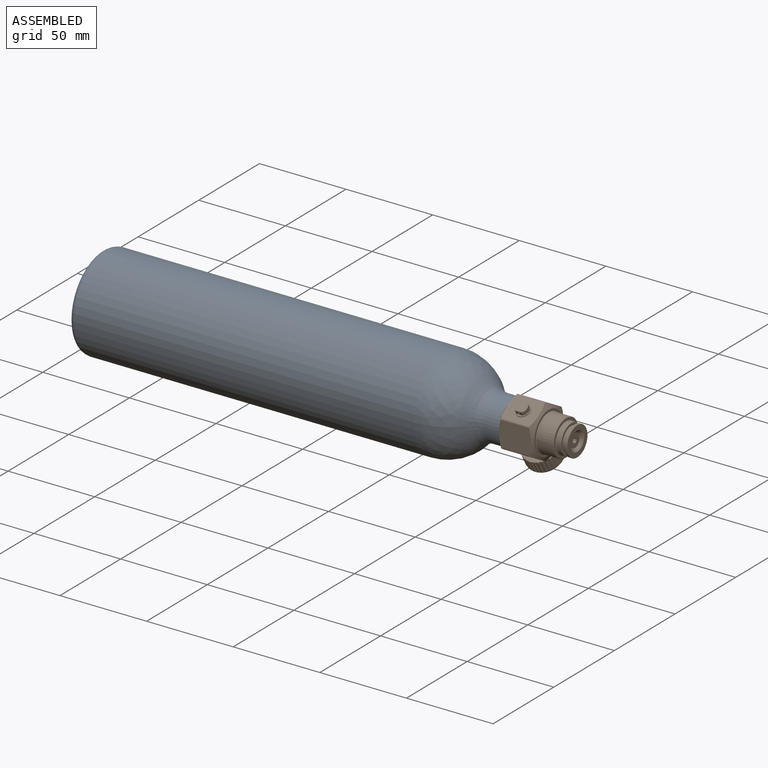
[diagram: assembled view]
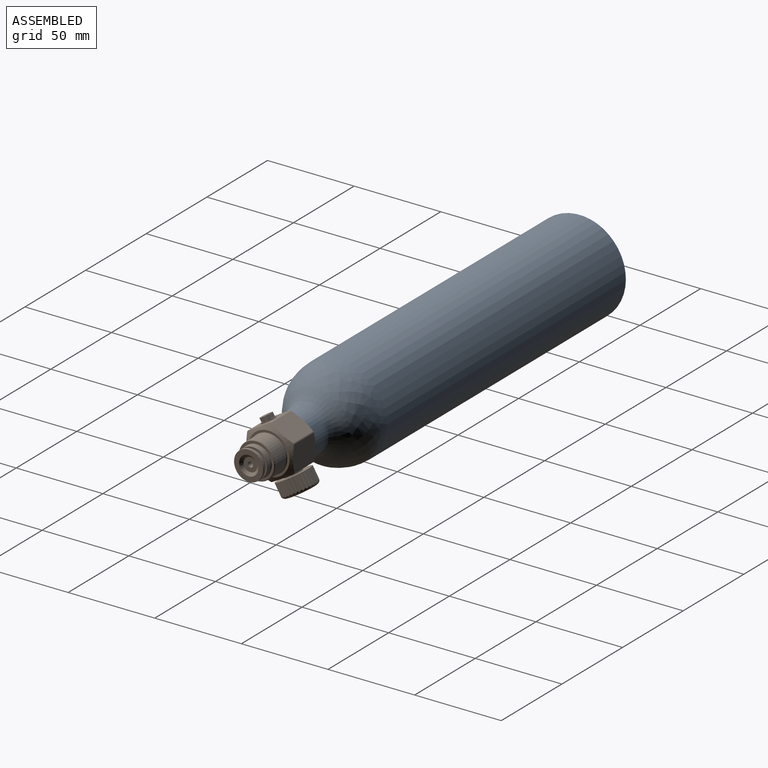
[diagram: assembled view, second angle]
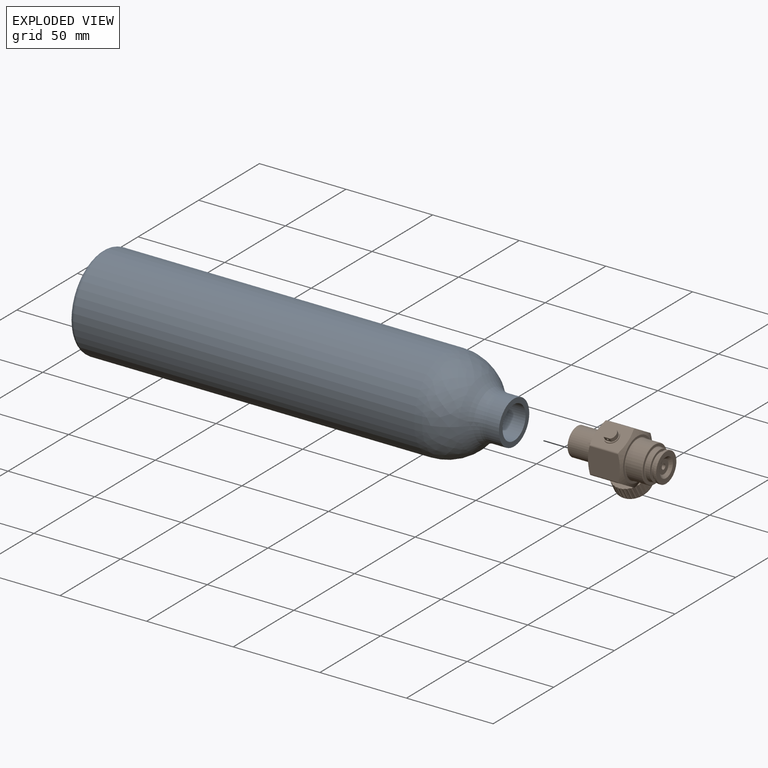
[diagram: exploded view]
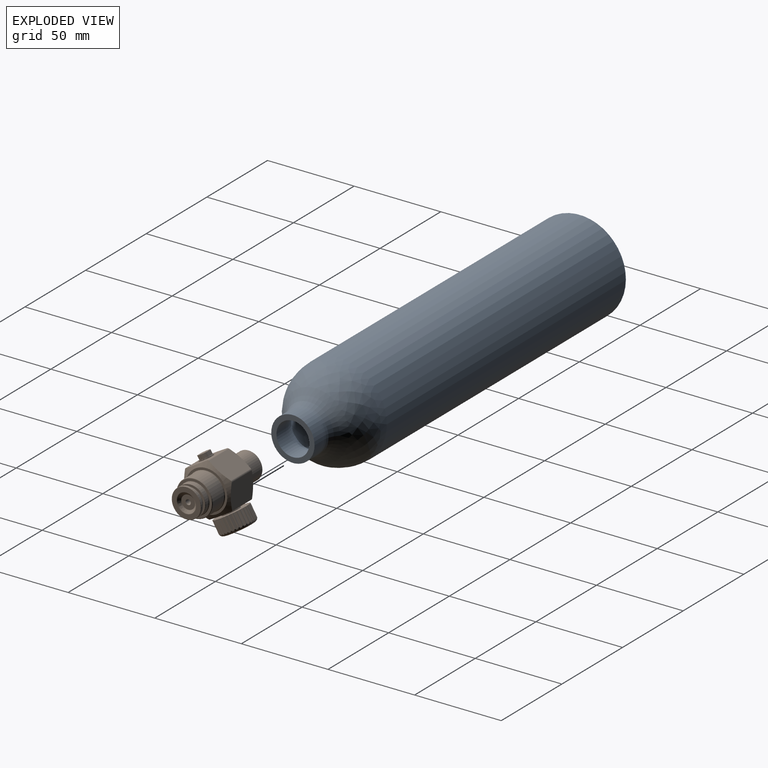
[diagram: exploded view, second angle]
ASSEMBLY  parts=2 mates=2
PART A: 12 faces, bbox 239.2x58.4x58.4 mm
  f0: torus R=24mm, axis (1,0,0), area 767.2mm2, adj f2,f10
  f1: cylinder r=24mm len=196.18mm, axis (-1,0,0), area 29583.5mm2, adj f8,f11
  f2: cylinder r=27mm len=196.18mm, axis (-1,0,0), area 33281.5mm2, adj f0,f3
  f3: revolved ~54x54mm, area 3859.4mm2, adj f2,f4
  f4: torus R=22.5mm, axis (-1,0,0), area 759.3mm2, adj f3,f5
  f5: cylinder r=12.5mm len=25mm, axis (-1,0,0), area 628.3mm2, adj f4,f9
  f6: cylinder r=9.5mm len=19mm, axis (-1,0,0), area 477.5mm2, adj f7,f9
  f7: torus R=22.5mm, axis (-1,0,0), area 798.4mm2, adj f6,f8
  f8: revolved ~48x48mm, area 3081.4mm2, adj f1,f7
  f9: plane 25x25mm, normal (1,0,0), area 207.3mm2, adj f5,f6
  f10: plane 48x48mm, normal (-1,0,0), area 1809.6mm2, adj f0
  f11: plane 48x48mm, normal (1,0,0), area 1809.6mm2, adj f1
PART B: 155 faces, bbox 40x30.9x51.5 mm
  f0: cylinder r=0.5mm len=3mm, axis (0,1,0), area 9.4mm2, adj f37,f154
  f1: cylinder r=4mm len=8mm, axis (1,0,0), area 12.6mm2, adj f38,f45
  f2: cylinder r=0.84mm len=8.14mm, axis (1,0,0), area 12.7mm2, adj f11,f64,f114,f115
  f3: cylinder r=0.84mm len=8.14mm, axis (1,0,0), area 12.7mm2, adj f11,f64,f112,f113
  f4: cylinder r=0.84mm len=8.14mm, axis (1,0,0), area 12.7mm2, adj f11,f64,f110,f111
  f5: cylinder r=0.84mm len=8.14mm, axis (1,0,0), area 12.7mm2, adj f11,f64,f108,f109
  f6: cylinder r=0.84mm len=8.14mm, axis (1,0,0), area 12.7mm2, adj f11,f64,f106,f107
  f7: cylinder r=0.84mm len=8.14mm, axis (1,0,0), area 12.7mm2, adj f11,f64,f104,f105
  f8: cylinder r=0.84mm len=8.14mm, axis (1,0,0), area 12.7mm2, adj f11,f64,f102,f103
  f9: cylinder r=0.84mm len=8.14mm, axis (1,0,0), area 12.7mm2, adj f11,f64,f100,f101
  f10: cylinder r=0.84mm len=8.14mm, axis (1,0,0), area 12.7mm2, adj f11,f64,f98,f99
  f11: torus R=8mm, axis (-1,0,0), area 138.8mm2, adj f2,f3,f4,f5,f6,f7,f8,f9
  f12: cylinder r=5mm len=10mm, axis (1,0,0), area 31.4mm2, adj f53,f64
  f13: cone r=8mm half-angle=45deg, axis (0,0,-1), area 17.5mm2, adj f21,f39
  f14: cone r=5.25mm half-angle=45deg, axis (0,0,1), area 11.4mm2, adj f19,f39
  f15: cone r=8.25mm half-angle=45deg, axis (0,0,-1), area 18mm2, adj f21,f58
  f16: cone r=10.48mm half-angle=45deg, axis (0,0,1), area 23mm2, adj f33,f41
  f17: cone r=8.5mm half-angle=45deg, axis (0,0,1), area 19.2mm2, adj f32,f41
  f18: cone r=10.48mm half-angle=45deg, axis (0,0,1), area 23.6mm2, adj f33,f57
  f19: cylinder r=5mm len=14.75mm, axis (0,0,1), area 463.4mm2, adj f14,f62
  f20: cylinder r=1.5mm len=35mm, axis (0,0,-1), area 329.9mm2, adj f40,f62
  f21: cylinder r=8mm len=16mm, axis (0,0,-1), area 728.8mm2, adj f13,f15
  f22: cone r=4.07mm half-angle=67.5deg, axis (0,0,-1), area 4.6mm2, adj f23,f40
  f23: cone r=5.43mm half-angle=45deg, axis (0,0,-1), area 57.3mm2, adj f22,f24
  f24: cone r=5.6mm half-angle=67.5deg, axis (0,0,-1), area 6.4mm2, adj f23,f61
  f25: cone r=8.5mm half-angle=45deg, axis (0,0,1), area 7.5mm2, adj f26,f61
  f26: cylinder r=8.5mm len=17mm, axis (0,0,-1), area 69.4mm2, adj f25,f27
  f27: cone r=8.4mm half-angle=45deg, axis (0,0,-1), area 7.5mm2, adj f26,f60
  f28: cone r=7mm half-angle=45deg, axis (0,0,-1), area 6.3mm2, adj f29,f60
  f29: cylinder r=7mm len=14mm, axis (0,0,-1), area 79.2mm2, adj f28,f30
  f30: cone r=7.1mm half-angle=45deg, axis (0,0,1), area 6.3mm2, adj f29,f59
  f31: cone r=8.5mm half-angle=45deg, axis (0,0,1), area 7.5mm2, adj f32,f59
  f32: cylinder r=8.5mm len=17mm, axis (0,0,-1), area 141.5mm2, adj f17,f31
  f33: cylinder r=10.48mm len=20.96mm, axis (0,0,1), area 625.4mm2, adj f16,f18
  f34: cone r=15.77mm half-angle=61.7deg, axis (0,0,-1), area 199.5mm2, adj f36,f42,f43,f44,f45,f46,f47,f48
  f35: cone r=15.77mm half-angle=61.7deg, axis (0,0,1), area 199.5mm2, adj f36,f42,f43,f44,f45,f46,f47,f48
  f36: cylinder r=1mm len=16.49mm, axis (0,0,1), area 17.2mm2, adj f34,f35,f42,f56
  f37: plane 3x2.5mm, normal (0,1,0), area 6.7mm2, adj f0,f38,f146,f152,f153
  f38: plane 8x8mm, normal (-1,0,0), area 14.3mm2, adj f1,f37,f146,f147,f148,f149,f150,f151
  f39: plane 15.5x15.5mm, normal (0,0,1), area 102.1mm2, adj f13,f14
  f40: plane 7.8x7.8mm, normal (0,0,-1), area 40.7mm2, adj f20,f22
  f41: plane 20.46x20.46mm, normal (0,0,-1), area 88.1mm2, adj f16,f17
  f42: plane 18.42x6.25mm, normal (-0.5,-0.87,0), area 128.1mm2, adj f34,f35,f36,f43
  f43: plane 18.42x6.25mm, normal (-0.5,-0.87,0), area 128.2mm2, adj f34,f35,f42,f44
  f44: cylinder r=1mm len=16.48mm, axis (0,0,1), area 17.3mm2, adj f34,f35,f43,f45
  f45: plane 18.42x14.43mm, normal (-1,0,0), area 205.9mm2, adj f1,f34,f35,f44,f46
  f46: cylinder r=1mm len=16.48mm, axis (0,0,1), area 17.3mm2, adj f34,f35,f45,f47
  f47: plane 18.42x6.25mm, normal (-0.5,0.87,0), area 128.2mm2, adj f34,f35,f46,f48
  f48: plane 18.42x6.25mm, normal (-0.5,0.87,0), area 128.1mm2, adj f34,f35,f47,f49
  f49: cylinder r=1mm len=16.49mm, axis (0,0,1), area 17.2mm2, adj f34,f35,f48,f50
  f50: plane 18.42x6.25mm, normal (0.5,0.87,0), area 128.1mm2, adj f34,f35,f49,f51
  f51: plane 18.42x6.25mm, normal (0.5,0.87,0), area 128.2mm2, adj f34,f35,f50,f52
  f52: cylinder r=1mm len=16.48mm, axis (0,0,1), area 17.3mm2, adj f34,f35,f51,f53
  f53: plane 18.42x14.43mm, normal (1,0,0), area 177.7mm2, adj f12,f34,f35,f52,f54
  f54: cylinder r=1mm len=16.48mm, axis (0,0,1), area 17.3mm2, adj f34,f35,f53,f55
  f55: plane 18.42x6.25mm, normal (0.5,-0.87,0), area 128.1mm2, adj f34,f35,f54,f56
  f56: plane 18.42x6.25mm, normal (0.5,-0.87,0), area 128.1mm2, adj f34,f35,f36,f55
  f57: plane 24.06x24.06mm, normal (0,0,-1), area 93.3mm2, adj f18,f35
  f58: plane 24.06x24.06mm, normal (0,0,1), area 241mm2, adj f15,f34
  f59: plane 16.8x16.8mm, normal (0,0,-1), area 63.3mm2, adj f30,f31
  f60: plane 16.8x16.8mm, normal (0,0,1), area 63.3mm2, adj f27,f28
  f61: plane 16.8x16.8mm, normal (0,0,-1), area 123.2mm2, adj f24,f25
  f62: plane 10x10mm, normal (0,0,1), area 71.5mm2, adj f19,f20
  f63: plane 16x16mm, normal (1,0,0), area 201.1mm2, adj f11
  f64: plane 20x19.9mm, normal (-1,0,0), area 226.4mm2, adj f2,f3,f4,f5,f6,f7,f8,f9
  f65: cylinder r=0.84mm len=8.14mm, axis (1,0,0), area 12.7mm2, adj f11,f64,f66,f67
  f66: plane 8.19x0.37mm, normal (0,-0.84,0.54), area 3.1mm2, adj f11,f64,f65,f145
  f67: plane 8.19x0.37mm, normal (0,-0.84,-0.54), area 3.1mm2, adj f11,f64,f65,f69
  f68: cylinder r=0.84mm len=8.14mm, axis (1,0,0), area 12.7mm2, adj f11,f64,f69,f70
  f69: plane 8.19x0.32mm, normal (0,-0.71,0.71), area 3.1mm2, adj f11,f64,f67,f68
  f70: plane 8.19x0.41mm, normal (0,-0.93,-0.36), area 3.1mm2, adj f11,f64,f68,f72
  f71: cylinder r=0.84mm len=8.14mm, axis (1,0,0), area 12.7mm2, adj f11,f64,f72,f73
  f72: plane 8.19x0.37mm, normal (0,-0.54,0.84), area 3.1mm2, adj f11,f64,f70,f71
  f73: plane 8.19x0.43mm, normal (0,-0.99,-0.16), area 3.1mm2, adj f11,f64,f71,f75
  f74: cylinder r=0.84mm len=8.14mm, axis (1,0,0), area 12.7mm2, adj f11,f64,f75,f76
  f75: plane 8.19x0.41mm, normal (0,-0.36,0.93), area 3.1mm2, adj f11,f64,f73,f74
  f76: plane 8.19x0.43mm, normal (0,-1,0.05), area 3.1mm2, adj f11,f64,f74,f78
  f77: cylinder r=0.84mm len=8.14mm, axis (1,0,0), area 12.7mm2, adj f11,f64,f78,f79
  f78: plane 8.19x0.43mm, normal (0,-0.16,0.99), area 3.1mm2, adj f11,f64,f76,f77
  f79: plane 8.19x0.42mm, normal (0,-0.97,0.26), area 3.1mm2, adj f11,f64,f77,f81
  f80: cylinder r=0.84mm len=8.14mm, axis (1,0,0), area 12.7mm2, adj f11,f64,f81,f82
  f81: plane 8.19x0.43mm, normal (0,0.05,1), area 3.1mm2, adj f11,f64,f79,f80
  f82: plane 8.19x0.39mm, normal (0,-0.89,0.45), area 3.1mm2, adj f11,f64,f80,f84
  f83: cylinder r=0.84mm len=8.14mm, axis (1,0,0), area 12.7mm2, adj f11,f64,f84,f85
  f84: plane 8.19x0.42mm, normal (0,0.26,0.97), area 3.1mm2, adj f11,f64,f82,f83
  f85: plane 8.19x0.34mm, normal (0,-0.78,0.63), area 3.1mm2, adj f11,f64,f83,f87
  f86: cylinder r=0.84mm len=8.14mm, axis (1,0,0), area 12.7mm2, adj f11,f64,f87,f88
  f87: plane 8.19x0.39mm, normal (0,0.45,0.89), area 3.1mm2, adj f11,f64,f85,f86
  f88: plane 8.19x0.35mm, normal (0,-0.63,0.78), area 3.1mm2, adj f11,f64,f86,f90
  f89: cylinder r=0.84mm len=8.14mm, axis (1,0,0), area 12.7mm2, adj f11,f64,f90,f91
  f90: plane 8.19x0.35mm, normal (0,0.63,0.78), area 3.1mm2, adj f11,f64,f88,f89
  f91: plane 8.19x0.39mm, normal (0,-0.45,0.89), area 3.1mm2, adj f11,f64,f89,f93
  f92: cylinder r=0.84mm len=8.14mm, axis (1,0,0), area 12.7mm2, adj f11,f64,f93,f94
  f93: plane 8.19x0.34mm, normal (0,0.78,0.63), area 3.1mm2, adj f11,f64,f91,f92
  f94: plane 8.19x0.42mm, normal (0,-0.26,0.97), area 3.1mm2, adj f11,f64,f92,f96
  f95: cylinder r=0.84mm len=8.14mm, axis (1,0,0), area 12.7mm2, adj f11,f64,f96,f97
  f96: plane 8.19x0.39mm, normal (0,0.89,0.45), area 3.1mm2, adj f11,f64,f94,f95
  f97: plane 8.19x0.43mm, normal (0,-0.05,1), area 3.1mm2, adj f11,f64,f95,f98
  f98: plane 8.19x0.42mm, normal (0,0.97,0.26), area 3.1mm2, adj f10,f11,f64,f97
  f99: plane 8.19x0.43mm, normal (0,0.16,0.99), area 3.1mm2, adj f10,f11,f64,f100
  f100: plane 8.19x0.43mm, normal (0,1,0.05), area 3.1mm2, adj f9,f11,f64,f99
  f101: plane 8.19x0.41mm, normal (0,0.36,0.93), area 3.1mm2, adj f9,f11,f64,f102
  f102: plane 8.19x0.43mm, normal (0,0.99,-0.16), area 3.1mm2, adj f8,f11,f64,f101
  f103: plane 8.19x0.37mm, normal (0,0.54,0.84), area 3.1mm2, adj f8,f11,f64,f104
  f104: plane 8.19x0.41mm, normal (0,0.93,-0.36), area 3.1mm2, adj f7,f11,f64,f103
  f105: plane 8.19x0.32mm, normal (0,0.71,0.71), area 3.1mm2, adj f7,f11,f64,f106
  f106: plane 8.19x0.37mm, normal (0,0.84,-0.54), area 3.1mm2, adj f6,f11,f64,f105
  f107: plane 8.19x0.37mm, normal (0,0.84,0.54), area 3.1mm2, adj f6,f11,f64,f108
  f108: plane 8.19x0.32mm, normal (0,0.71,-0.71), area 3.1mm2, adj f5,f11,f64,f107
  f109: plane 8.19x0.41mm, normal (0,0.93,0.36), area 3.1mm2, adj f5,f11,f64,f110
  f110: plane 8.19x0.37mm, normal (0,0.54,-0.84), area 3.1mm2, adj f4,f11,f64,f109
  f111: plane 8.19x0.43mm, normal (0,0.99,0.16), area 3.1mm2, adj f4,f11,f64,f112
  f112: plane 8.19x0.41mm, normal (0,0.36,-0.93), area 3.1mm2, adj f3,f11,f64,f111
  f113: plane 8.19x0.43mm, normal (0,1,-0.05), area 3.1mm2, adj f3,f11,f64,f114
  f114: plane 8.19x0.43mm, normal (0,0.16,-0.99), area 3.1mm2, adj f2,f11,f64,f113
  f115: plane 8.19x0.42mm, normal (0,0.97,-0.26), area 3.1mm2, adj f2,f11,f64,f117
  f116: cylinder r=0.84mm len=8.14mm, axis (1,0,0), area 12.7mm2, adj f11,f64,f117,f118
  f117: plane 8.19x0.43mm, normal (0,-0.05,-1), area 3.1mm2, adj f11,f64,f115,f116
  f118: plane 8.19x0.39mm, normal (0,0.89,-0.45), area 3.1mm2, adj f11,f64,f116,f120
  f119: cylinder r=0.84mm len=8.14mm, axis (1,0,0), area 12.7mm2, adj f11,f64,f120,f121
  f120: plane 8.19x0.42mm, normal (0,-0.26,-0.97), area 3.1mm2, adj f11,f64,f118,f119
  f121: plane 8.19x0.34mm, normal (0,0.78,-0.63), area 3.1mm2, adj f11,f64,f119,f123
  f122: cylinder r=0.84mm len=8.14mm, axis (1,0,0), area 12.7mm2, adj f11,f64,f123,f124
  f123: plane 8.19x0.39mm, normal (0,-0.45,-0.89), area 3.1mm2, adj f11,f64,f121,f122
  f124: plane 8.19x0.35mm, normal (0,0.63,-0.78), area 3.1mm2, adj f11,f64,f122,f126
  f125: cylinder r=0.84mm len=8.14mm, axis (1,0,0), area 12.7mm2, adj f11,f64,f126,f127
  f126: plane 8.19x0.35mm, normal (0,-0.63,-0.78), area 3.1mm2, adj f11,f64,f124,f125
  f127: plane 8.19x0.39mm, normal (0,0.45,-0.89), area 3.1mm2, adj f11,f64,f125,f129
  f128: cylinder r=0.84mm len=8.14mm, axis (1,0,0), area 12.7mm2, adj f11,f64,f129,f130
  f129: plane 8.19x0.34mm, normal (0,-0.78,-0.63), area 3.1mm2, adj f11,f64,f127,f128
  f130: plane 8.19x0.42mm, normal (0,0.26,-0.97), area 3.1mm2, adj f11,f64,f128,f132
  f131: cylinder r=0.84mm len=8.14mm, axis (1,0,0), area 12.7mm2, adj f11,f64,f132,f133
  f132: plane 8.19x0.39mm, normal (0,-0.89,-0.45), area 3.1mm2, adj f11,f64,f130,f131
  f133: plane 8.19x0.43mm, normal (0,0.05,-1), area 3.1mm2, adj f11,f64,f131,f135
  f134: cylinder r=0.84mm len=8.14mm, axis (1,0,0), area 12.7mm2, adj f11,f64,f135,f136
  f135: plane 8.19x0.42mm, normal (0,-0.97,-0.26), area 3.1mm2, adj f11,f64,f133,f134
  f136: plane 8.19x0.43mm, normal (0,-0.16,-0.99), area 3.1mm2, adj f11,f64,f134,f138
  f137: cylinder r=0.84mm len=8.14mm, axis (1,0,0), area 12.7mm2, adj f11,f64,f138,f139
  f138: plane 8.19x0.43mm, normal (0,-1,-0.05), area 3.1mm2, adj f11,f64,f136,f137
  f139: plane 8.19x0.41mm, normal (0,-0.36,-0.93), area 3.1mm2, adj f11,f64,f137,f141
  f140: cylinder r=0.84mm len=8.14mm, axis (1,0,0), area 12.7mm2, adj f11,f64,f141,f142
  f141: plane 8.19x0.43mm, normal (0,-0.99,0.16), area 3.1mm2, adj f11,f64,f139,f140
  f142: plane 8.19x0.37mm, normal (0,-0.54,-0.84), area 3.1mm2, adj f11,f64,f140,f144
  f143: cylinder r=0.84mm len=8.14mm, axis (1,0,0), area 12.7mm2, adj f11,f64,f144,f145
  f144: plane 8.19x0.41mm, normal (0,-0.93,0.36), area 3.1mm2, adj f11,f64,f142,f143
  f145: plane 8.19x0.32mm, normal (0,-0.71,-0.71), area 3.1mm2, adj f11,f64,f66,f143
  f146: cylinder r=1mm len=2.5mm, axis (1,0,0), area 1.6mm2, adj f37,f38,f147,f153
  f147: cylinder r=3.5mm len=5.6mm, axis (1,0,0), area 16.2mm2, adj f38,f146,f148,f153
  f148: cylinder r=1mm len=2.5mm, axis (1,0,0), area 1.6mm2, adj f38,f147,f149,f153
  f149: plane 3x2.5mm, normal (0,-1,0), area 7.5mm2, adj f38,f148,f150,f153
  f150: cylinder r=1mm len=2.5mm, axis (1,0,0), area 1.6mm2, adj f38,f149,f151,f153
  f151: cylinder r=3.5mm len=5.6mm, axis (1,0,0), area 16.2mm2, adj f38,f150,f152,f153
  f152: cylinder r=1mm len=2.5mm, axis (1,0,0), area 1.6mm2, adj f37,f38,f151,f153
  f153: plane 7x6mm, normal (-1,0,0), area 36mm2, adj f37,f146,f147,f148,f149,f150,f151,f152
  f154: plane 1x1mm, normal (0,1,0), area 0.8mm2, adj f0
PLACE A t=(-334.8,-23.02,-1.47)mm
PLACE B rot(axis=(-0.69,-0.19,0.69),158.3deg) t=(-96.8,-23.02,-1.47)mm
MATE planar B.f13 <-> A.f0  axis (-1,0,0) through (-96.8,-23.02,-1.47)mm
MATE cylindrical B.f13 <-> A.f0  axis (1,0,0) through (-104.3,-23.02,-1.47)mm
